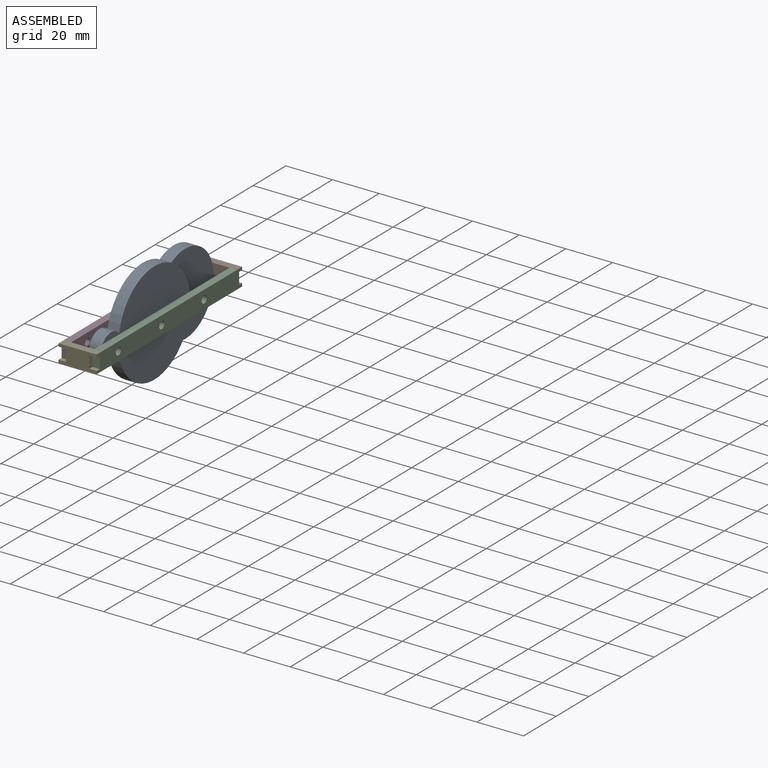
[diagram: assembled view]
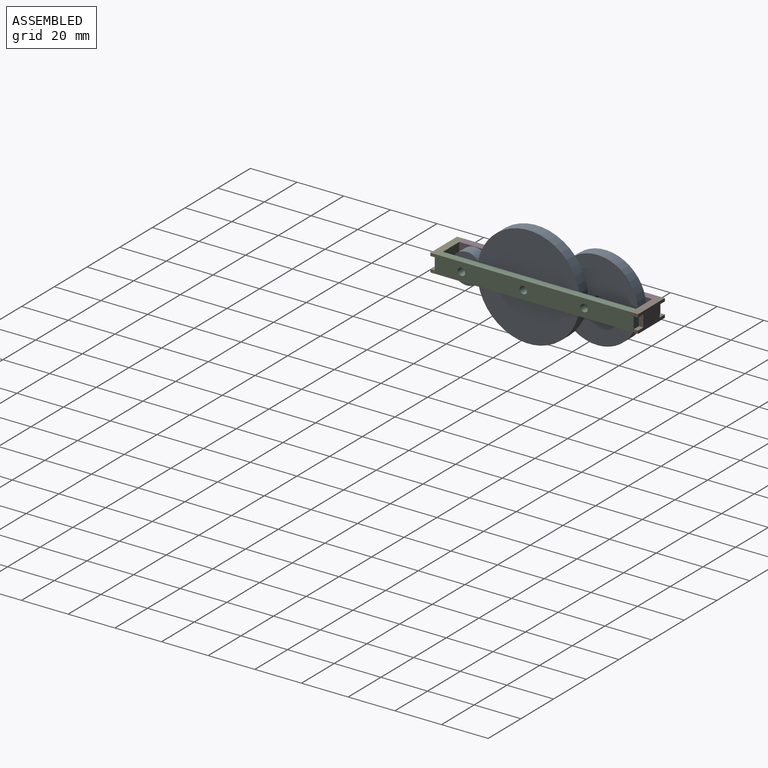
[diagram: assembled view, second angle]
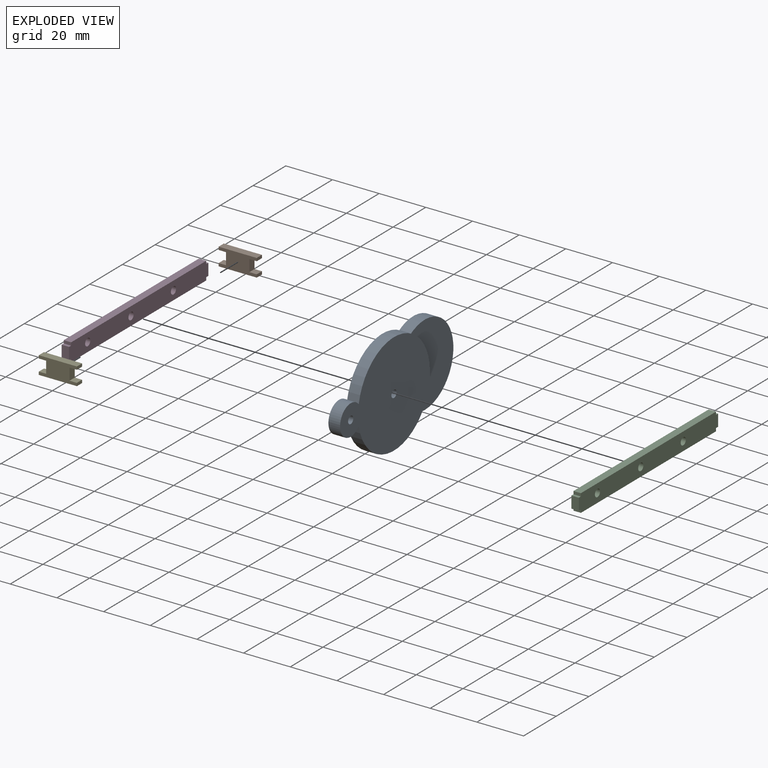
[diagram: exploded view]
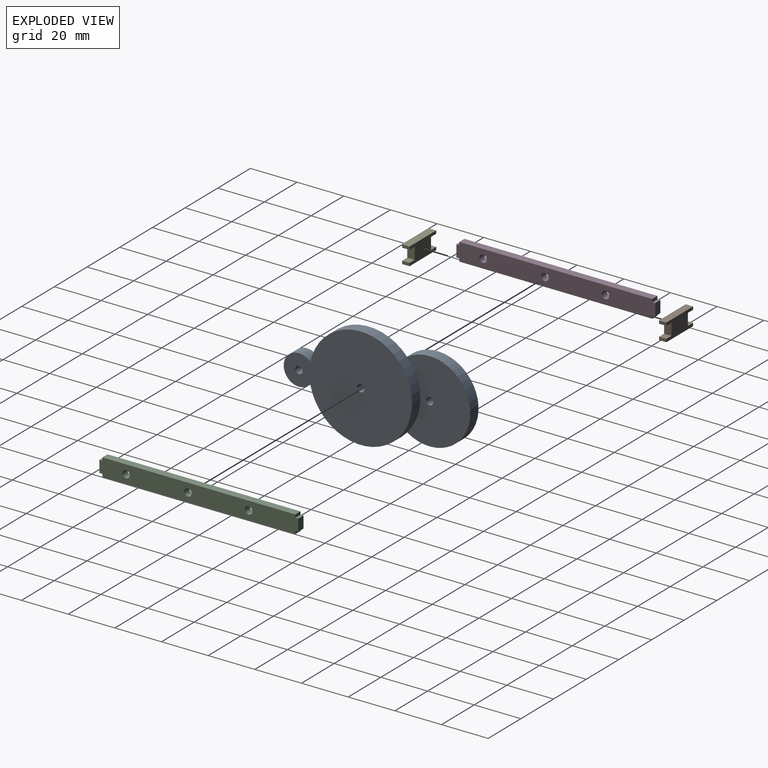
[diagram: exploded view, second angle]
ASSEMBLY  parts=5 mates=4
PART A: 11 faces, bbox 10x76.5x44 mm
  f0: cylinder r=22mm len=44mm, axis (-1,0,0), area 648.3mm2, adj f3,f4,f5,f10
  f1: cylinder r=1.59mm len=10mm, axis (-1,0,0), area 99.7mm2, adj f4,f9
  f2: cylinder r=1.59mm len=5mm, axis (-1,0,0), area 49.9mm2, adj f4,f5
  f3: cylinder r=6.5mm len=13mm, axis (-1,0,0), area 157.8mm2, adj f0,f4,f5
  f4: plane 55x44mm, normal (1,0,0), area 1625.8mm2, adj f0,f1,f2,f3
  f5: plane 49.42x44mm, normal (-1,0,0), area 1025.5mm2, adj f0,f2,f3,f6,f8
  f6: cylinder r=10.5mm len=21mm, axis (1,0,0), area 277.7mm2, adj f5,f8,f9
  f7: cylinder r=1.59mm len=5mm, axis (1,0,0), area 49.9mm2, adj f9,f10
  f8: cylinder r=17.5mm len=35mm, axis (1,0,0), area 499mm2, adj f5,f6,f9,f10
  f9: plane 54x35mm, normal (-1,0,0), area 1279.2mm2, adj f1,f6,f7,f8
  f10: plane 35x27.08mm, normal (1,0,0), area 678.8mm2, adj f0,f7,f8
PART B: 14 faces, bbox 16.4x3.2x7.6 mm
  f0: plane 3.18x1.27mm, normal (1,0,0), area 4mm2, adj f1,f11,f12,f13
  f1: plane 16.35x3.18mm, normal (0,0,1), area 51.9mm2, adj f0,f2,f12,f13
  f2: plane 3.18x1.27mm, normal (-1,0,0), area 4mm2, adj f1,f3,f12,f13
  f3: plane 3.18x3.18mm, normal (0,0,-1), area 10.1mm2, adj f2,f4,f12,f13
  f4: plane 5.08x3.18mm, normal (-1,0,0), area 16.1mm2, adj f3,f5,f12,f13
  f5: plane 3.18x3.18mm, normal (0,0,1), area 10.1mm2, adj f4,f6,f12,f13
  f6: plane 3.18x1.27mm, normal (-1,0,0), area 4mm2, adj f5,f7,f12,f13
  f7: plane 16.35x3.18mm, normal (0,0,-1), area 51.9mm2, adj f6,f8,f12,f13
  f8: plane 3.18x1.27mm, normal (1,0,0), area 4mm2, adj f7,f9,f12,f13
  f9: plane 3.18x3.18mm, normal (0,0,1), area 10.1mm2, adj f8,f10,f12,f13
  f10: plane 5.08x3.18mm, normal (1,0,0), area 16.1mm2, adj f9,f11,f12,f13
  f11: plane 3.18x3.18mm, normal (0,0,-1), area 10.1mm2, adj f0,f10,f12,f13
  f12: plane 16.35x7.62mm, normal (0,-1,0), area 92.3mm2, adj f0,f1,f2,f3,f4,f5,f6,f7
  f13: plane 16.35x7.62mm, normal (0,1,0), area 92.3mm2, adj f0,f1,f2,f3,f4,f5,f6,f7
PART C: 17 faces, bbox 3.2x85.2x7.6 mm
  f0: plane 82.7x3.18mm, normal (0,0,1), area 262.6mm2, adj f1,f13,f15,f16
  f1: plane 3.18x1.27mm, normal (0,1,0), area 4mm2, adj f0,f2,f15,f16
  f2: plane 3.18x1.27mm, normal (0,0,1), area 4mm2, adj f1,f3,f15,f16
  f3: plane 5.08x3.18mm, normal (0,1,0), area 16.1mm2, adj f2,f4,f15,f16
  f4: plane 3.18x1.27mm, normal (0,0,-1), area 4mm2, adj f3,f5,f15,f16
  f5: plane 3.18x1.27mm, normal (0,1,0), area 4mm2, adj f4,f6,f15,f16
  f6: plane 82.7x3.18mm, normal (0,0,-1), area 262.6mm2, adj f5,f7,f15,f16
  f7: plane 3.18x1.27mm, normal (0,-1,0), area 4mm2, adj f6,f8,f15,f16
  f8: plane 3.18x1.27mm, normal (0,0,-1), area 4mm2, adj f7,f9,f15,f16
  f9: plane 5.08x3.18mm, normal (0,-1,0), area 16.1mm2, adj f8,f10,f15,f16
  f10: plane 3.18x1.27mm, normal (0,0,1), area 4mm2, adj f9,f13,f15,f16
  f11: cylinder r=1.59mm len=3.18mm, axis (1,0,0), area 31.7mm2, adj f15,f16
  f12: cylinder r=1.59mm len=3.18mm, axis (1,0,0), area 31.7mm2, adj f15,f16
  f13: plane 3.18x1.27mm, normal (0,-1,0), area 4mm2, adj f0,f10,f15,f16
  f14: cylinder r=1.59mm len=3.18mm, axis (1,0,0), area 31.7mm2, adj f15,f16
  f15: plane 85.24x7.62mm, normal (-1,0,0), area 619.3mm2, adj f0,f1,f2,f3,f4,f5,f6,f7
  f16: plane 85.24x7.62mm, normal (1,0,0), area 619.3mm2, adj f0,f1,f2,f3,f4,f5,f6,f7
PART D: same geometry as C
PART E: same geometry as B
PLACE A t=(20.95,-61.11,40.66)mm
PLACE B t=(-1.64,14.61,34.25)mm
PLACE C t=(34.13,-61.11,40.66)mm
PLACE D t=(20.95,-61.11,40.66)mm
PLACE E t=(-1.64,-71.27,34.25)mm
MATE fastened B.f12 <-> C.f5  axis (0,-1,0) through (29.13,11.43,36.85)mm
MATE fastened D.f11 <-> A.f7  axis (1,0,0) through (15.95,-8.61,40.66)mm
MATE fastened E.f13 <-> D.f7  axis (0,1,0) through (15.95,-71.27,38.12)mm
MATE fastened A.f2 <-> C.f14  axis (1,0,0) through (25.95,-61.11,40.66)mm
